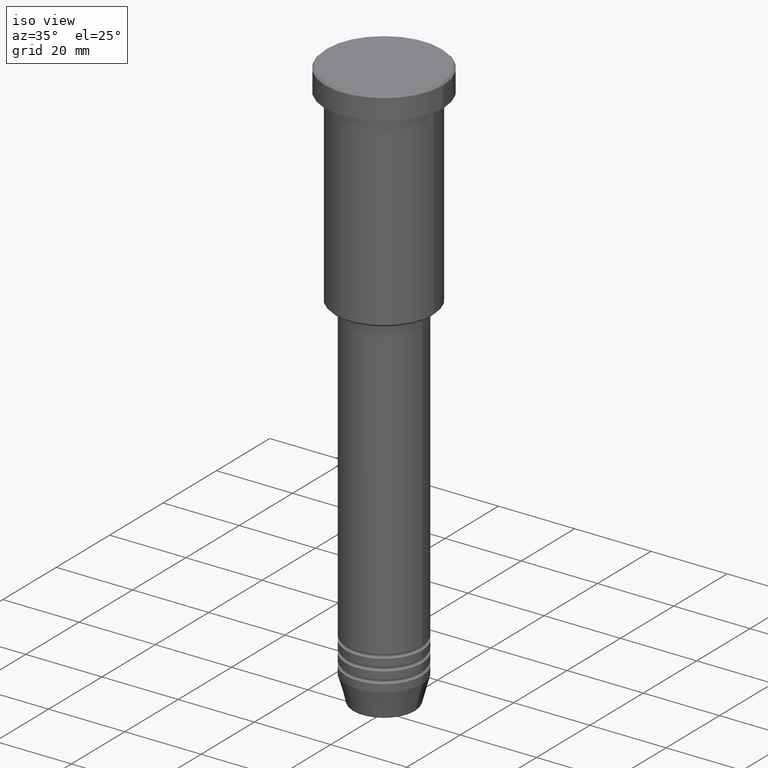
[diagram: clean part render]
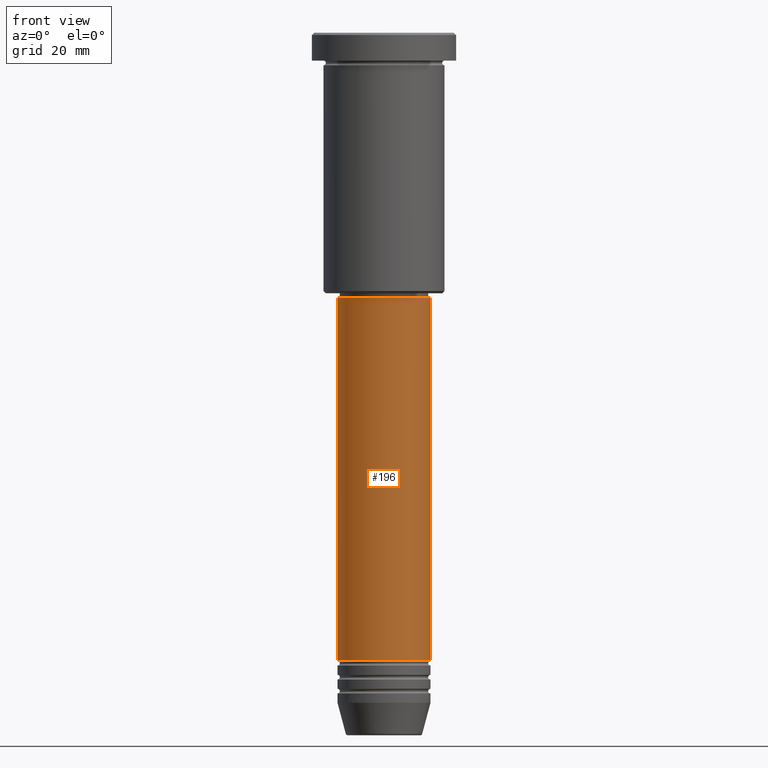
[diagram: tour spotlight — one face highlighted and labeled with its STEP entity id]
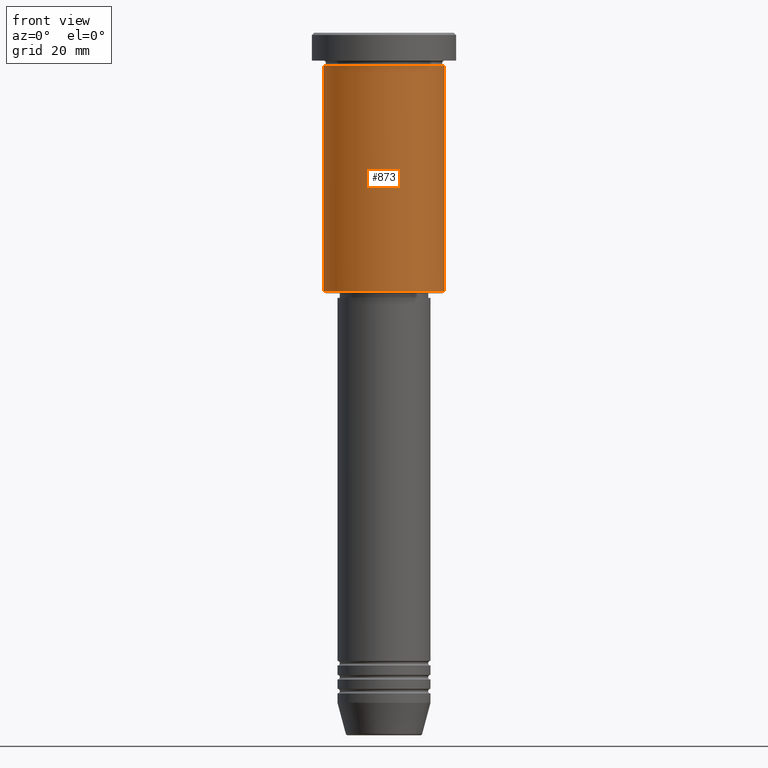
[diagram: tour spotlight — one face highlighted and labeled with its STEP entity id]
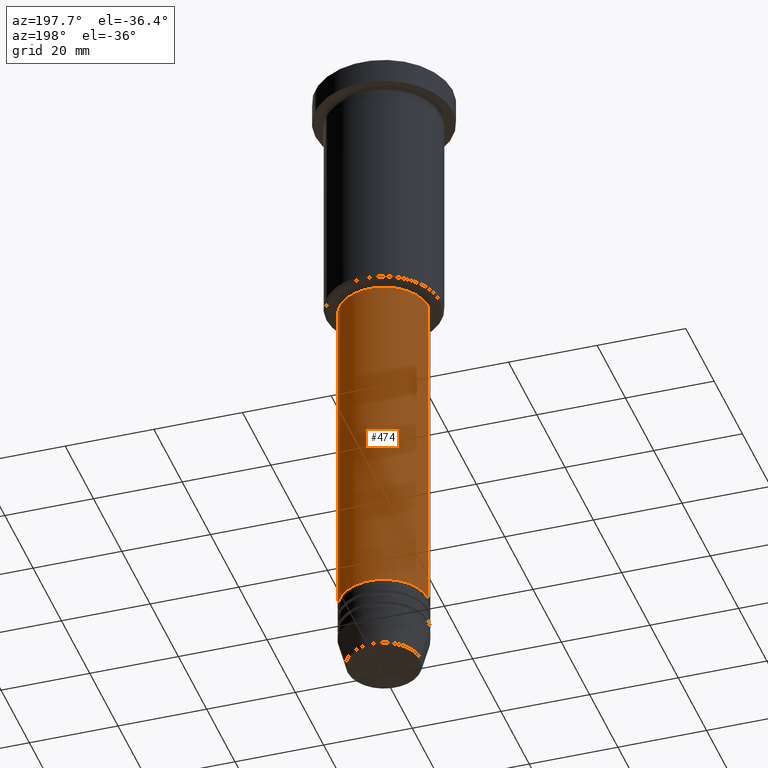
[diagram: tour spotlight — one face highlighted and labeled with its STEP entity id]
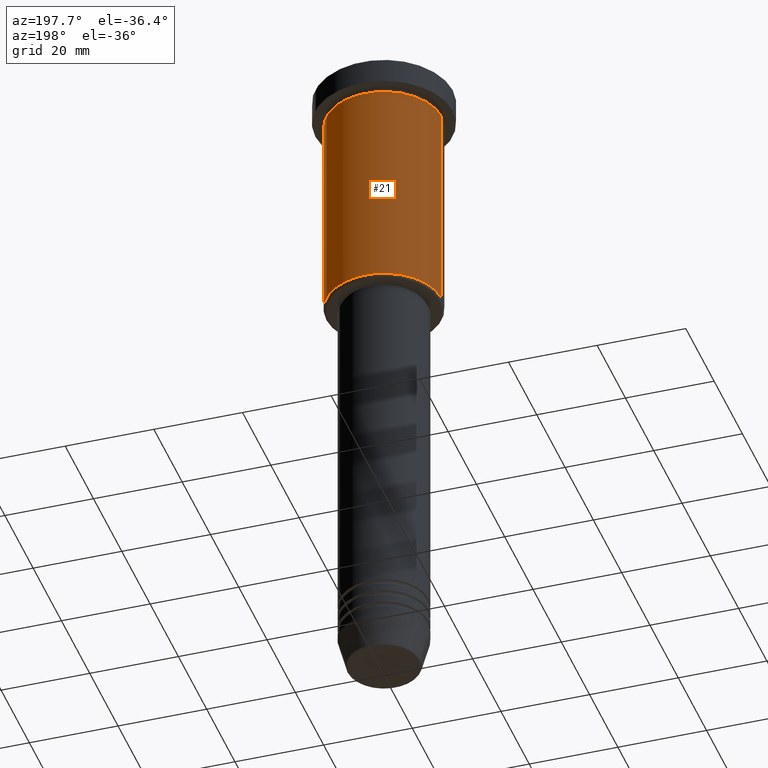
[diagram: tour spotlight — one face highlighted and labeled with its STEP entity id]
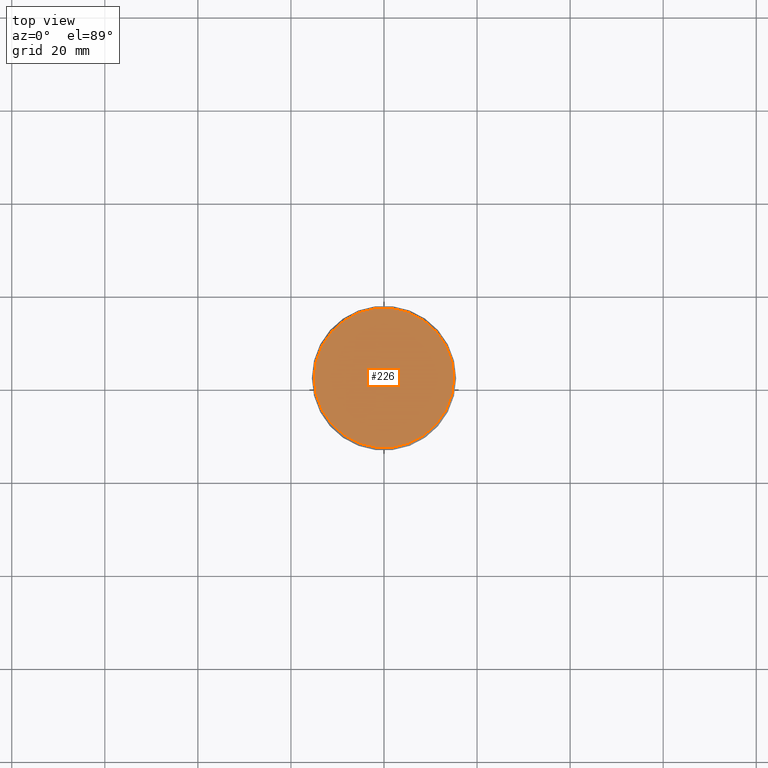
[diagram: tour spotlight — one face highlighted and labeled with its STEP entity id]
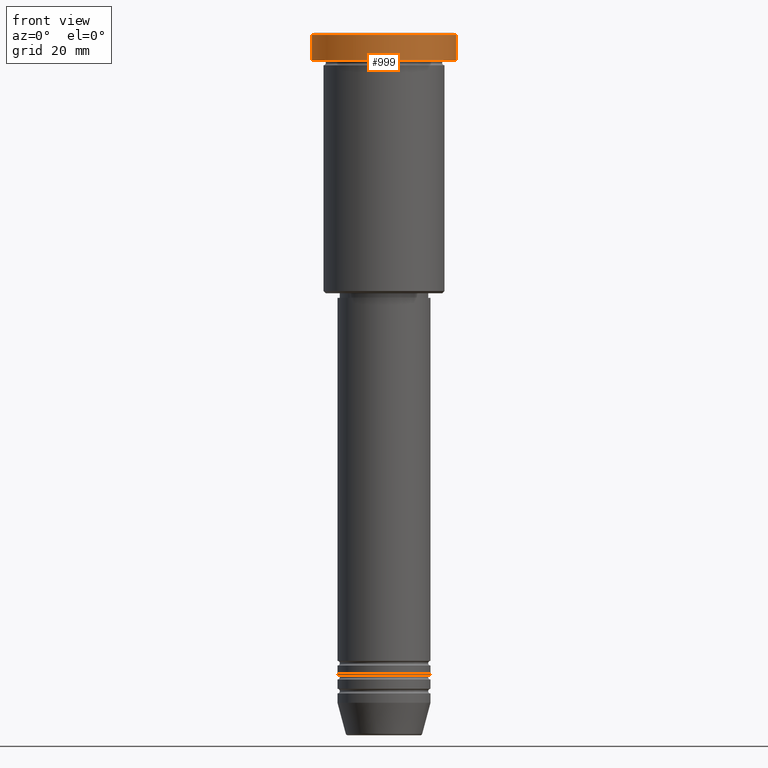
[diagram: tour spotlight — one face highlighted and labeled with its STEP entity id]
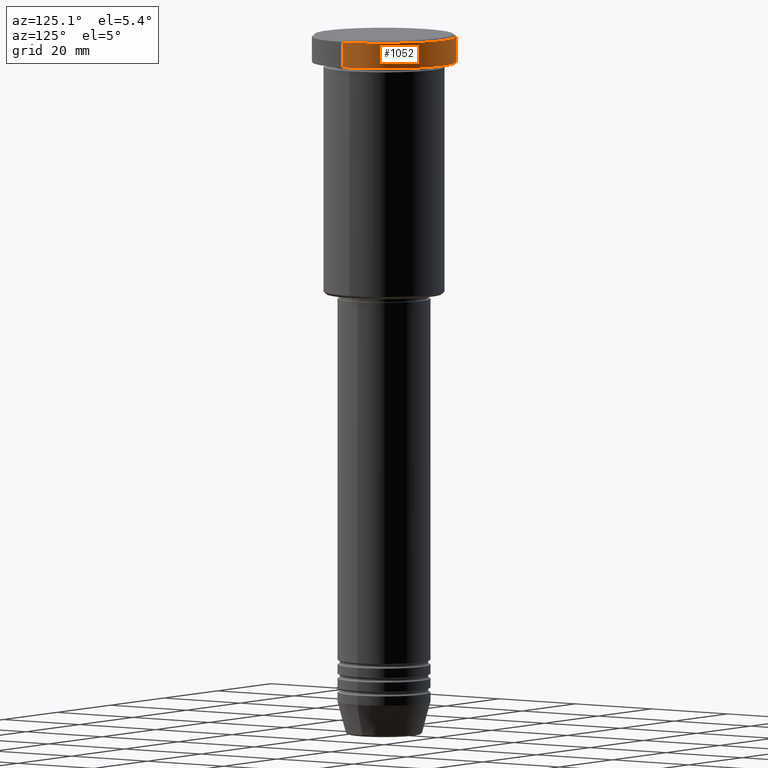
[diagram: tour spotlight — one face highlighted and labeled with its STEP entity id]
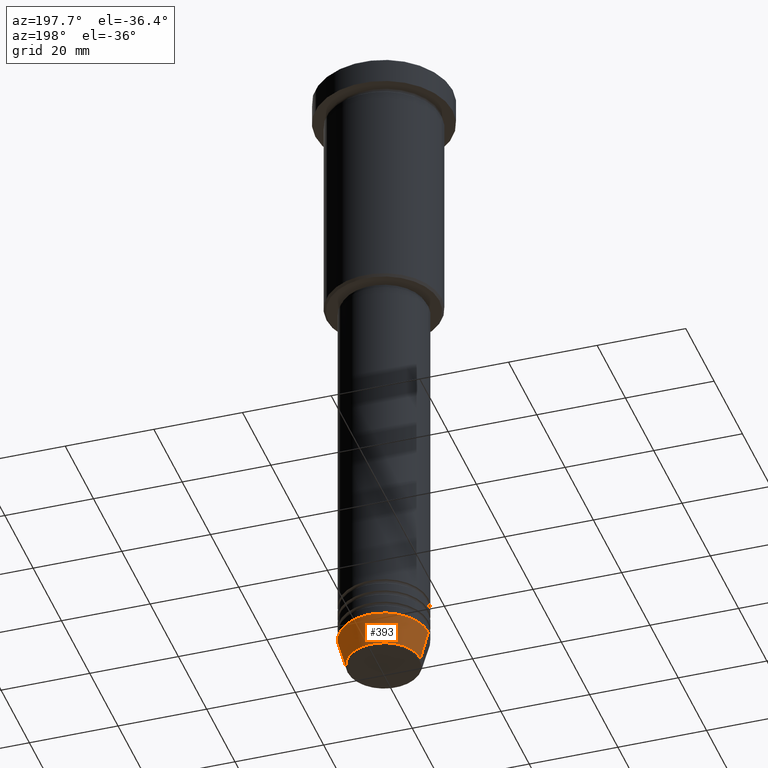
[diagram: tour spotlight — one face highlighted and labeled with its STEP entity id]
A machine part: a face-by-face anatomy tour. The part has 43 B-rep faces; the first image is the clean iso view, then the 8 largest visible faces are spotlighted one at a time (largest first), each with its STEP entity span.

Face 1 — front view, entity #196. In plain terms, the highlighted cylindrical surface (partial cylindrical patch) has radius 10 mm, axis along (-0, -0, 1).
Definition (entity closure, byte-faithful):
#109 = VERTEX_POINT ( 'NONE', #274 ) ;
#111 = DIRECTION ( 'NONE',  ( 1.000000000000000000, 0.000000000000000000, 0.000000000000000000 ) ) ;
#166 = EDGE_LOOP ( 'NONE', ( #892, #970, #905, #227 ) ) ;
#196 = ADVANCED_FACE ( 'NONE', ( #1043 ), #205, .T. ) ;
#205 = CYLINDRICAL_SURFACE ( 'NONE', #1084, 10.00000000000000000 ) ;
#224 = CARTESIAN_POINT ( 'NONE',  ( 0.000000000000000000, 0.000000000000000000, 0.000000000000000000 ) ) ;
#227 = ORIENTED_EDGE ( 'NONE', *, *, #302, .F. ) ;
#244 = LINE ( 'NONE', #447, #846 ) ;
#274 = CARTESIAN_POINT ( 'NONE',  ( -10.00000000000000000, 1.224646799147353256E-15, -57.00000000000001421 ) ) ;
#302 = EDGE_CURVE ( 'NONE', #109, #778, #804, .T. ) ;
#306 = DIRECTION ( 'NONE',  ( 1.000000000000000000, 0.000000000000000000, 0.000000000000000000 ) ) ;
#315 = CARTESIAN_POINT ( 'NONE',  ( 0.000000000000000000, 0.000000000000000000, -134.9999999999999716 ) ) ;
#365 = LINE ( 'NONE', #987, #499 ) ;
#447 = CARTESIAN_POINT ( 'NONE',  ( -10.00000000000000000, 1.224646799147353256E-15, 0.000000000000000000 ) ) ;
#448 = VERTEX_POINT ( 'NONE', #1056 ) ;
#499 = VECTOR ( 'NONE', #1088, 1000.000000000000000 ) ;
#511 = DIRECTION ( 'NONE',  ( 1.000000000000000000, 0.000000000000000000, 0.000000000000000000 ) ) ;
#547 = CARTESIAN_POINT ( 'NONE',  ( -10.00000000000000000, 1.224646799147353256E-15, -134.9999999999999716 ) ) ;
#574 = CARTESIAN_POINT ( 'NONE',  ( 10.00000000000000000, 0.000000000000000000, -57.00000000000001421 ) ) ;
#589 = DIRECTION ( 'NONE',  ( -0.000000000000000000, -0.000000000000000000, 1.000000000000000000 ) ) ;
#669 = DIRECTION ( 'NONE',  ( -0.000000000000000000, -0.000000000000000000, 1.000000000000000000 ) ) ;
#769 = CARTESIAN_POINT ( 'NONE',  ( 0.000000000000000000, 0.000000000000000000, -57.00000000000001421 ) ) ;
#778 = VERTEX_POINT ( 'NONE', #574 ) ;
#786 = EDGE_CURVE ( 'NONE', #1022, #448, #1026, .T. ) ;
#804 = CIRCLE ( 'NONE', #937, 10.00000000000000000 ) ;
#811 = DIRECTION ( 'NONE',  ( -0.000000000000000000, -0.000000000000000000, 1.000000000000000000 ) ) ;
#846 = VECTOR ( 'NONE', #811, 1000.000000000000000 ) ;
#892 = ORIENTED_EDGE ( 'NONE', *, *, #1078, .F. ) ;
#905 = ORIENTED_EDGE ( 'NONE', *, *, #1089, .T. ) ;
#937 = AXIS2_PLACEMENT_3D ( 'NONE', #769, #1028, #111 ) ;
#970 = ORIENTED_EDGE ( 'NONE', *, *, #786, .T. ) ;
#987 = CARTESIAN_POINT ( 'NONE',  ( 10.00000000000000000, 0.000000000000000000, 0.000000000000000000 ) ) ;
#1022 = VERTEX_POINT ( 'NONE', #547 ) ;
#1026 = CIRCLE ( 'NONE', #1061, 10.00000000000000000 ) ;
#1028 = DIRECTION ( 'NONE',  ( -0.000000000000000000, -0.000000000000000000, 1.000000000000000000 ) ) ;
#1043 = FACE_OUTER_BOUND ( 'NONE', #166, .T. ) ;
#1056 = CARTESIAN_POINT ( 'NONE',  ( 10.00000000000000000, 0.000000000000000000, -134.9999999999999716 ) ) ;
#1061 = AXIS2_PLACEMENT_3D ( 'NONE', #315, #669, #306 ) ;
#1078 = EDGE_CURVE ( 'NONE', #1022, #109, #244, .T. ) ;
#1084 = AXIS2_PLACEMENT_3D ( 'NONE', #224, #589, #511 ) ;
#1088 = DIRECTION ( 'NONE',  ( -0.000000000000000000, -0.000000000000000000, 1.000000000000000000 ) ) ;
#1089 = EDGE_CURVE ( 'NONE', #448, #778, #365, .T. ) ;

Face 2 — front view, entity #873. In plain terms, the highlighted cylindrical surface (partial cylindrical patch) has radius 13 mm, axis along (-0, -0, 1).
Definition (entity closure, byte-faithful):
#75 = LINE ( 'NONE', #625, #238 ) ;
#89 = CARTESIAN_POINT ( 'NONE',  ( 13.00000000000000000, 0.000000000000000000, -55.50000000000002132 ) ) ;
#91 = DIRECTION ( 'NONE',  ( -1.000000000000000000, 0.000000000000000000, 0.000000000000000000 ) ) ;
#106 = ORIENTED_EDGE ( 'NONE', *, *, #135, .T. ) ;
#123 = AXIS2_PLACEMENT_3D ( 'NONE', #261, #149, #328 ) ;
#135 = EDGE_CURVE ( 'NONE', #1027, #653, #718, .T. ) ;
#138 = CYLINDRICAL_SURFACE ( 'NONE', #807, 13.00000000000000000 ) ;
#149 = DIRECTION ( 'NONE',  ( -0.000000000000000000, -0.000000000000000000, 1.000000000000000000 ) ) ;
#151 = EDGE_CURVE ( 'NONE', #1027, #632, #559, .T. ) ;
#156 = CARTESIAN_POINT ( 'NONE',  ( 0.000000000000000000, 0.000000000000000000, 0.000000000000000000 ) ) ;
#171 = VERTEX_POINT ( 'NONE', #917 ) ;
#184 = AXIS2_PLACEMENT_3D ( 'NONE', #832, #727, #91 ) ;
#238 = VECTOR ( 'NONE', #911, 1000.000000000000000 ) ;
#261 = CARTESIAN_POINT ( 'NONE',  ( 0.000000000000000000, 0.000000000000000000, -6.999999999999995559 ) ) ;
#328 = DIRECTION ( 'NONE',  ( 1.000000000000000000, 0.000000000000000000, 0.000000000000000000 ) ) ;
#430 = EDGE_LOOP ( 'NONE', ( #1113, #106, #711, #528 ) ) ;
#502 = CIRCLE ( 'NONE', #123, 13.00000000000000000 ) ;
#528 = ORIENTED_EDGE ( 'NONE', *, *, #857, .F. ) ;
#534 = FACE_OUTER_BOUND ( 'NONE', #430, .T. ) ;
#559 = LINE ( 'NONE', #1001, #760 ) ;
#625 = CARTESIAN_POINT ( 'NONE',  ( 13.00000000000000000, 0.000000000000000000, 0.000000000000000000 ) ) ;
#632 = VERTEX_POINT ( 'NONE', #1013 ) ;
#653 = VERTEX_POINT ( 'NONE', #89 ) ;
#711 = ORIENTED_EDGE ( 'NONE', *, *, #977, .T. ) ;
#718 = CIRCLE ( 'NONE', #184, 13.00000000000000000 ) ;
#727 = DIRECTION ( 'NONE',  ( -0.000000000000000000, -0.000000000000000000, 1.000000000000000000 ) ) ;
#760 = VECTOR ( 'NONE', #933, 1000.000000000000000 ) ;
#807 = AXIS2_PLACEMENT_3D ( 'NONE', #156, #874, #882 ) ;
#832 = CARTESIAN_POINT ( 'NONE',  ( 0.000000000000000000, 0.000000000000000000, -55.50000000000002132 ) ) ;
#857 = EDGE_CURVE ( 'NONE', #632, #171, #502, .T. ) ;
#873 = ADVANCED_FACE ( 'NONE', ( #534 ), #138, .T. ) ;
#874 = DIRECTION ( 'NONE',  ( -0.000000000000000000, -0.000000000000000000, 1.000000000000000000 ) ) ;
#882 = DIRECTION ( 'NONE',  ( 1.000000000000000000, 0.000000000000000000, 0.000000000000000000 ) ) ;
#911 = DIRECTION ( 'NONE',  ( -0.000000000000000000, -0.000000000000000000, 1.000000000000000000 ) ) ;
#917 = CARTESIAN_POINT ( 'NONE',  ( 13.00000000000000000, 0.000000000000000000, -6.999999999999995559 ) ) ;
#933 = DIRECTION ( 'NONE',  ( -0.000000000000000000, -0.000000000000000000, 1.000000000000000000 ) ) ;
#977 = EDGE_CURVE ( 'NONE', #653, #171, #75, .T. ) ;
#1001 = CARTESIAN_POINT ( 'NONE',  ( -13.00000000000000000, 1.592040838891559095E-15, 0.000000000000000000 ) ) ;
#1013 = CARTESIAN_POINT ( 'NONE',  ( -13.00000000000000000, 1.592040838891559095E-15, -6.999999999999995559 ) ) ;
#1027 = VERTEX_POINT ( 'NONE', #1158 ) ;
#1113 = ORIENTED_EDGE ( 'NONE', *, *, #151, .F. ) ;
#1158 = CARTESIAN_POINT ( 'NONE',  ( -13.00000000000000000, 1.592040838891559095E-15, -55.50000000000002132 ) ) ;

Face 3 — auxiliary view, entity #474. In plain terms, the highlighted cylindrical surface (partial cylindrical patch) has radius 10 mm, axis along (-0, -0, 1).
Definition (entity closure, byte-faithful):
#9 = EDGE_CURVE ( 'NONE', #778, #109, #301, .T. ) ;
#54 = CARTESIAN_POINT ( 'NONE',  ( 0.000000000000000000, 0.000000000000000000, 0.000000000000000000 ) ) ;
#60 = ORIENTED_EDGE ( 'NONE', *, *, #9, .F. ) ;
#62 = CYLINDRICAL_SURFACE ( 'NONE', #586, 10.00000000000000000 ) ;
#79 = EDGE_LOOP ( 'NONE', ( #397, #808, #60, #1095 ) ) ;
#109 = VERTEX_POINT ( 'NONE', #274 ) ;
#189 = EDGE_CURVE ( 'NONE', #448, #1022, #362, .T. ) ;
#204 = DIRECTION ( 'NONE',  ( -0.000000000000000000, -0.000000000000000000, 1.000000000000000000 ) ) ;
#229 = DIRECTION ( 'NONE',  ( 1.000000000000000000, 0.000000000000000000, 0.000000000000000000 ) ) ;
#244 = LINE ( 'NONE', #447, #846 ) ;
#274 = CARTESIAN_POINT ( 'NONE',  ( -10.00000000000000000, 1.224646799147353256E-15, -57.00000000000001421 ) ) ;
#301 = CIRCLE ( 'NONE', #828, 10.00000000000000000 ) ;
#342 = DIRECTION ( 'NONE',  ( -0.000000000000000000, -0.000000000000000000, 1.000000000000000000 ) ) ;
#362 = CIRCLE ( 'NONE', #1010, 10.00000000000000000 ) ;
#365 = LINE ( 'NONE', #987, #499 ) ;
#389 = DIRECTION ( 'NONE',  ( 1.000000000000000000, 0.000000000000000000, 0.000000000000000000 ) ) ;
#397 = ORIENTED_EDGE ( 'NONE', *, *, #189, .T. ) ;
#447 = CARTESIAN_POINT ( 'NONE',  ( -10.00000000000000000, 1.224646799147353256E-15, 0.000000000000000000 ) ) ;
#448 = VERTEX_POINT ( 'NONE', #1056 ) ;
#474 = ADVANCED_FACE ( 'NONE', ( #610 ), #62, .T. ) ;
#499 = VECTOR ( 'NONE', #1088, 1000.000000000000000 ) ;
#547 = CARTESIAN_POINT ( 'NONE',  ( -10.00000000000000000, 1.224646799147353256E-15, -134.9999999999999716 ) ) ;
#574 = CARTESIAN_POINT ( 'NONE',  ( 10.00000000000000000, 0.000000000000000000, -57.00000000000001421 ) ) ;
#586 = AXIS2_PLACEMENT_3D ( 'NONE', #54, #342, #714 ) ;
#610 = FACE_OUTER_BOUND ( 'NONE', #79, .T. ) ;
#652 = CARTESIAN_POINT ( 'NONE',  ( 0.000000000000000000, 0.000000000000000000, -134.9999999999999716 ) ) ;
#672 = DIRECTION ( 'NONE',  ( -0.000000000000000000, -0.000000000000000000, 1.000000000000000000 ) ) ;
#714 = DIRECTION ( 'NONE',  ( 1.000000000000000000, 0.000000000000000000, 0.000000000000000000 ) ) ;
#778 = VERTEX_POINT ( 'NONE', #574 ) ;
#808 = ORIENTED_EDGE ( 'NONE', *, *, #1078, .T. ) ;
#811 = DIRECTION ( 'NONE',  ( -0.000000000000000000, -0.000000000000000000, 1.000000000000000000 ) ) ;
#828 = AXIS2_PLACEMENT_3D ( 'NONE', #853, #204, #389 ) ;
#846 = VECTOR ( 'NONE', #811, 1000.000000000000000 ) ;
#853 = CARTESIAN_POINT ( 'NONE',  ( 0.000000000000000000, 0.000000000000000000, -57.00000000000001421 ) ) ;
#987 = CARTESIAN_POINT ( 'NONE',  ( 10.00000000000000000, 0.000000000000000000, 0.000000000000000000 ) ) ;
#1010 = AXIS2_PLACEMENT_3D ( 'NONE', #652, #672, #229 ) ;
#1022 = VERTEX_POINT ( 'NONE', #547 ) ;
#1056 = CARTESIAN_POINT ( 'NONE',  ( 10.00000000000000000, 0.000000000000000000, -134.9999999999999716 ) ) ;
#1078 = EDGE_CURVE ( 'NONE', #1022, #109, #244, .T. ) ;
#1088 = DIRECTION ( 'NONE',  ( -0.000000000000000000, -0.000000000000000000, 1.000000000000000000 ) ) ;
#1089 = EDGE_CURVE ( 'NONE', #448, #778, #365, .T. ) ;
#1095 = ORIENTED_EDGE ( 'NONE', *, *, #1089, .F. ) ;

Face 4 — auxiliary view, entity #21. In plain terms, the highlighted cylindrical surface (partial cylindrical patch) has radius 13 mm, axis along (-0, -0, 1).
Definition (entity closure, byte-faithful):
#1 = DIRECTION ( 'NONE',  ( -0.000000000000000000, -0.000000000000000000, 1.000000000000000000 ) ) ;
#2 = FACE_OUTER_BOUND ( 'NONE', #826, .T. ) ;
#21 = ADVANCED_FACE ( 'NONE', ( #2 ), #557, .T. ) ;
#75 = LINE ( 'NONE', #625, #238 ) ;
#89 = CARTESIAN_POINT ( 'NONE',  ( 13.00000000000000000, 0.000000000000000000, -55.50000000000002132 ) ) ;
#151 = EDGE_CURVE ( 'NONE', #1027, #632, #559, .T. ) ;
#160 = EDGE_CURVE ( 'NONE', #653, #1027, #413, .T. ) ;
#171 = VERTEX_POINT ( 'NONE', #917 ) ;
#179 = DIRECTION ( 'NONE',  ( -1.000000000000000000, 0.000000000000000000, 0.000000000000000000 ) ) ;
#238 = VECTOR ( 'NONE', #911, 1000.000000000000000 ) ;
#321 = AXIS2_PLACEMENT_3D ( 'NONE', #836, #1181, #981 ) ;
#371 = EDGE_CURVE ( 'NONE', #171, #632, #572, .T. ) ;
#413 = CIRCLE ( 'NONE', #776, 13.00000000000000000 ) ;
#424 = CARTESIAN_POINT ( 'NONE',  ( 0.000000000000000000, 0.000000000000000000, -6.999999999999995559 ) ) ;
#487 = AXIS2_PLACEMENT_3D ( 'NONE', #424, #973, #701 ) ;
#543 = ORIENTED_EDGE ( 'NONE', *, *, #160, .T. ) ;
#557 = CYLINDRICAL_SURFACE ( 'NONE', #321, 13.00000000000000000 ) ;
#559 = LINE ( 'NONE', #1001, #760 ) ;
#572 = CIRCLE ( 'NONE', #487, 13.00000000000000000 ) ;
#625 = CARTESIAN_POINT ( 'NONE',  ( 13.00000000000000000, 0.000000000000000000, 0.000000000000000000 ) ) ;
#632 = VERTEX_POINT ( 'NONE', #1013 ) ;
#644 = CARTESIAN_POINT ( 'NONE',  ( 0.000000000000000000, 0.000000000000000000, -55.50000000000002132 ) ) ;
#653 = VERTEX_POINT ( 'NONE', #89 ) ;
#701 = DIRECTION ( 'NONE',  ( 1.000000000000000000, 0.000000000000000000, 0.000000000000000000 ) ) ;
#760 = VECTOR ( 'NONE', #933, 1000.000000000000000 ) ;
#776 = AXIS2_PLACEMENT_3D ( 'NONE', #644, #1, #179 ) ;
#826 = EDGE_LOOP ( 'NONE', ( #543, #1105, #975, #929 ) ) ;
#836 = CARTESIAN_POINT ( 'NONE',  ( 0.000000000000000000, 0.000000000000000000, 0.000000000000000000 ) ) ;
#911 = DIRECTION ( 'NONE',  ( -0.000000000000000000, -0.000000000000000000, 1.000000000000000000 ) ) ;
#917 = CARTESIAN_POINT ( 'NONE',  ( 13.00000000000000000, 0.000000000000000000, -6.999999999999995559 ) ) ;
#929 = ORIENTED_EDGE ( 'NONE', *, *, #977, .F. ) ;
#933 = DIRECTION ( 'NONE',  ( -0.000000000000000000, -0.000000000000000000, 1.000000000000000000 ) ) ;
#973 = DIRECTION ( 'NONE',  ( -0.000000000000000000, -0.000000000000000000, 1.000000000000000000 ) ) ;
#975 = ORIENTED_EDGE ( 'NONE', *, *, #371, .F. ) ;
#977 = EDGE_CURVE ( 'NONE', #653, #171, #75, .T. ) ;
#981 = DIRECTION ( 'NONE',  ( 1.000000000000000000, 0.000000000000000000, 0.000000000000000000 ) ) ;
#1001 = CARTESIAN_POINT ( 'NONE',  ( -13.00000000000000000, 1.592040838891559095E-15, 0.000000000000000000 ) ) ;
#1013 = CARTESIAN_POINT ( 'NONE',  ( -13.00000000000000000, 1.592040838891559095E-15, -6.999999999999995559 ) ) ;
#1027 = VERTEX_POINT ( 'NONE', #1158 ) ;
#1105 = ORIENTED_EDGE ( 'NONE', *, *, #151, .T. ) ;
#1158 = CARTESIAN_POINT ( 'NONE',  ( -13.00000000000000000, 1.592040838891559095E-15, -55.50000000000002132 ) ) ;
#1181 = DIRECTION ( 'NONE',  ( -0.000000000000000000, -0.000000000000000000, 1.000000000000000000 ) ) ;

Face 5 — top view, entity #226. In plain terms, the highlighted planar face has unit normal (0, -0, 1).
Definition (entity closure, byte-faithful):
#48 = DIRECTION ( 'NONE',  ( -0.000000000000000000, -0.000000000000000000, 1.000000000000000000 ) ) ;
#129 = DIRECTION ( 'NONE',  ( 0.000000000000000000, -0.000000000000000000, 1.000000000000000000 ) ) ;
#197 = ORIENTED_EDGE ( 'NONE', *, *, #1094, .T. ) ;
#226 = ADVANCED_FACE ( 'NONE', ( #1031 ), #680, .T. ) ;
#282 = AXIS2_PLACEMENT_3D ( 'NONE', #1048, #129, #508 ) ;
#360 = DIRECTION ( 'NONE',  ( 1.000000000000000000, 0.000000000000000000, 0.000000000000000000 ) ) ;
#415 = ORIENTED_EDGE ( 'NONE', *, *, #885, .T. ) ;
#423 = DIRECTION ( 'NONE',  ( 1.000000000000000000, 0.000000000000000000, 0.000000000000000000 ) ) ;
#477 = CARTESIAN_POINT ( 'NONE',  ( -14.99999999999997158, 0.000000000000000000, 0.000000000000000000 ) ) ;
#508 = DIRECTION ( 'NONE',  ( 1.000000000000000000, 0.000000000000000000, 0.000000000000000000 ) ) ;
#540 = CIRCLE ( 'NONE', #827, 14.99999999999997158 ) ;
#680 = PLANE ( 'NONE',  #282 ) ;
#819 = DIRECTION ( 'NONE',  ( -0.000000000000000000, -0.000000000000000000, 1.000000000000000000 ) ) ;
#827 = AXIS2_PLACEMENT_3D ( 'NONE', #904, #48, #423 ) ;
#877 = AXIS2_PLACEMENT_3D ( 'NONE', #908, #819, #360 ) ;
#885 = EDGE_CURVE ( 'NONE', #959, #1148, #540, .T. ) ;
#904 = CARTESIAN_POINT ( 'NONE',  ( 0.000000000000000000, 0.000000000000000000, 0.000000000000000000 ) ) ;
#908 = CARTESIAN_POINT ( 'NONE',  ( 0.000000000000000000, 0.000000000000000000, 0.000000000000000000 ) ) ;
#959 = VERTEX_POINT ( 'NONE', #1149 ) ;
#1031 = FACE_OUTER_BOUND ( 'NONE', #1130, .T. ) ;
#1048 = CARTESIAN_POINT ( 'NONE',  ( 0.000000000000000000, 0.000000000000000000, 0.000000000000000000 ) ) ;
#1057 = CIRCLE ( 'NONE', #877, 14.99999999999997158 ) ;
#1094 = EDGE_CURVE ( 'NONE', #1148, #959, #1057, .T. ) ;
#1130 = EDGE_LOOP ( 'NONE', ( #197, #415 ) ) ;
#1148 = VERTEX_POINT ( 'NONE', #477 ) ;
#1149 = CARTESIAN_POINT ( 'NONE',  ( 14.99999999999997158, 1.867586368699711798E-15, 0.000000000000000000 ) ) ;

Face 6 — front view, entity #999. In plain terms, the highlighted cylindrical surface (partial cylindrical patch) has radius 15.5 mm, axis along (-0, -0, 1).
Definition (entity closure, byte-faithful):
#8 = CARTESIAN_POINT ( 'NONE',  ( 15.50000000000000000, 0.000000000000000000, 0.000000000000000000 ) ) ;
#34 = EDGE_CURVE ( 'NONE', #963, #1062, #988, .T. ) ;
#45 = CARTESIAN_POINT ( 'NONE',  ( -15.50000000000000000, 1.898202538678397557E-15, -5.999999999999995559 ) ) ;
#52 = DIRECTION ( 'NONE',  ( 1.000000000000000000, 0.000000000000000000, 0.000000000000000000 ) ) ;
#98 = DIRECTION ( 'NONE',  ( -0.000000000000000000, -0.000000000000000000, 1.000000000000000000 ) ) ;
#158 = DIRECTION ( 'NONE',  ( -0.000000000000000000, -0.000000000000000000, 1.000000000000000000 ) ) ;
#168 = AXIS2_PLACEMENT_3D ( 'NONE', #969, #703, #175 ) ;
#175 = DIRECTION ( 'NONE',  ( 1.000000000000000000, 0.000000000000000000, 0.000000000000000000 ) ) ;
#260 = VERTEX_POINT ( 'NONE', #45 ) ;
#288 = LINE ( 'NONE', #1020, #1011 ) ;
#355 = ORIENTED_EDGE ( 'NONE', *, *, #34, .T. ) ;
#439 = CARTESIAN_POINT ( 'NONE',  ( 15.50000000000000000, 0.000000000000000000, -5.999999999999995559 ) ) ;
#488 = ORIENTED_EDGE ( 'NONE', *, *, #494, .T. ) ;
#494 = EDGE_CURVE ( 'NONE', #260, #963, #864, .T. ) ;
#506 = EDGE_CURVE ( 'NONE', #260, #581, #288, .T. ) ;
#531 = DIRECTION ( 'NONE',  ( -0.000000000000000000, -0.000000000000000000, 1.000000000000000000 ) ) ;
#544 = FACE_OUTER_BOUND ( 'NONE', #1034, .T. ) ;
#581 = VERTEX_POINT ( 'NONE', #1109 ) ;
#598 = CARTESIAN_POINT ( 'NONE',  ( 0.000000000000000000, 0.000000000000000000, 0.000000000000000000 ) ) ;
#621 = CARTESIAN_POINT ( 'NONE',  ( 0.000000000000000000, 0.000000000000000000, -5.999999999999995559 ) ) ;
#624 = AXIS2_PLACEMENT_3D ( 'NONE', #598, #531, #52 ) ;
#667 = ORIENTED_EDGE ( 'NONE', *, *, #1029, .T. ) ;
#703 = DIRECTION ( 'NONE',  ( 0.000000000000000000, 0.000000000000000000, -1.000000000000000000 ) ) ;
#710 = CYLINDRICAL_SURFACE ( 'NONE', #624, 15.50000000000000000 ) ;
#723 = DIRECTION ( 'NONE',  ( -0.000000000000000000, -0.000000000000000000, 1.000000000000000000 ) ) ;
#833 = DIRECTION ( 'NONE',  ( 1.000000000000000000, 0.000000000000000000, 0.000000000000000000 ) ) ;
#864 = CIRCLE ( 'NONE', #903, 15.50000000000000000 ) ;
#903 = AXIS2_PLACEMENT_3D ( 'NONE', #621, #723, #833 ) ;
#919 = CIRCLE ( 'NONE', #168, 15.50000000000000000 ) ;
#963 = VERTEX_POINT ( 'NONE', #439 ) ;
#969 = CARTESIAN_POINT ( 'NONE',  ( 0.000000000000000000, 0.000000000000000000, -0.5000000000000264233 ) ) ;
#988 = LINE ( 'NONE', #8, #992 ) ;
#992 = VECTOR ( 'NONE', #158, 1000.000000000000000 ) ;
#999 = ADVANCED_FACE ( 'NONE', ( #544 ), #710, .T. ) ;
#1011 = VECTOR ( 'NONE', #98, 1000.000000000000000 ) ;
#1020 = CARTESIAN_POINT ( 'NONE',  ( -15.50000000000000000, 1.898202538678397557E-15, 0.000000000000000000 ) ) ;
#1029 = EDGE_CURVE ( 'NONE', #1062, #581, #919, .T. ) ;
#1034 = EDGE_LOOP ( 'NONE', ( #1049, #488, #355, #667 ) ) ;
#1049 = ORIENTED_EDGE ( 'NONE', *, *, #506, .F. ) ;
#1062 = VERTEX_POINT ( 'NONE', #1083 ) ;
#1083 = CARTESIAN_POINT ( 'NONE',  ( 15.50000000000000000, 0.000000000000000000, -0.5000000000000264233 ) ) ;
#1109 = CARTESIAN_POINT ( 'NONE',  ( -15.50000000000000000, 1.898202538678397557E-15, -0.5000000000000264233 ) ) ;

Face 7 — auxiliary view, entity #1052. In plain terms, the highlighted cylindrical surface (partial cylindrical patch) has radius 15.5 mm, axis along (-0, -0, 1).
Definition (entity closure, byte-faithful):
#8 = CARTESIAN_POINT ( 'NONE',  ( 15.50000000000000000, 0.000000000000000000, 0.000000000000000000 ) ) ;
#13 = DIRECTION ( 'NONE',  ( 1.000000000000000000, 0.000000000000000000, 0.000000000000000000 ) ) ;
#32 = ORIENTED_EDGE ( 'NONE', *, *, #548, .T. ) ;
#34 = EDGE_CURVE ( 'NONE', #963, #1062, #988, .T. ) ;
#45 = CARTESIAN_POINT ( 'NONE',  ( -15.50000000000000000, 1.898202538678397557E-15, -5.999999999999995559 ) ) ;
#98 = DIRECTION ( 'NONE',  ( -0.000000000000000000, -0.000000000000000000, 1.000000000000000000 ) ) ;
#110 = EDGE_CURVE ( 'NONE', #963, #260, #1157, .T. ) ;
#158 = DIRECTION ( 'NONE',  ( -0.000000000000000000, -0.000000000000000000, 1.000000000000000000 ) ) ;
#260 = VERTEX_POINT ( 'NONE', #45 ) ;
#288 = LINE ( 'NONE', #1020, #1011 ) ;
#303 = CIRCLE ( 'NONE', #1122, 15.50000000000000000 ) ;
#340 = AXIS2_PLACEMENT_3D ( 'NONE', #755, #555, #924 ) ;
#345 = DIRECTION ( 'NONE',  ( -0.000000000000000000, -0.000000000000000000, 1.000000000000000000 ) ) ;
#346 = ORIENTED_EDGE ( 'NONE', *, *, #110, .T. ) ;
#373 = DIRECTION ( 'NONE',  ( 0.000000000000000000, 0.000000000000000000, -1.000000000000000000 ) ) ;
#439 = CARTESIAN_POINT ( 'NONE',  ( 15.50000000000000000, 0.000000000000000000, -5.999999999999995559 ) ) ;
#506 = EDGE_CURVE ( 'NONE', #260, #581, #288, .T. ) ;
#548 = EDGE_CURVE ( 'NONE', #581, #1062, #303, .T. ) ;
#555 = DIRECTION ( 'NONE',  ( -0.000000000000000000, -0.000000000000000000, 1.000000000000000000 ) ) ;
#581 = VERTEX_POINT ( 'NONE', #1109 ) ;
#613 = CARTESIAN_POINT ( 'NONE',  ( 0.000000000000000000, 0.000000000000000000, 0.000000000000000000 ) ) ;
#637 = CARTESIAN_POINT ( 'NONE',  ( 0.000000000000000000, 0.000000000000000000, -0.5000000000000264233 ) ) ;
#674 = AXIS2_PLACEMENT_3D ( 'NONE', #613, #345, #980 ) ;
#679 = EDGE_LOOP ( 'NONE', ( #346, #1164, #32, #820 ) ) ;
#755 = CARTESIAN_POINT ( 'NONE',  ( 0.000000000000000000, 0.000000000000000000, -5.999999999999995559 ) ) ;
#820 = ORIENTED_EDGE ( 'NONE', *, *, #34, .F. ) ;
#914 = CYLINDRICAL_SURFACE ( 'NONE', #674, 15.50000000000000000 ) ;
#924 = DIRECTION ( 'NONE',  ( 1.000000000000000000, 0.000000000000000000, 0.000000000000000000 ) ) ;
#963 = VERTEX_POINT ( 'NONE', #439 ) ;
#980 = DIRECTION ( 'NONE',  ( 1.000000000000000000, 0.000000000000000000, 0.000000000000000000 ) ) ;
#988 = LINE ( 'NONE', #8, #992 ) ;
#992 = VECTOR ( 'NONE', #158, 1000.000000000000000 ) ;
#998 = FACE_OUTER_BOUND ( 'NONE', #679, .T. ) ;
#1011 = VECTOR ( 'NONE', #98, 1000.000000000000000 ) ;
#1020 = CARTESIAN_POINT ( 'NONE',  ( -15.50000000000000000, 1.898202538678397557E-15, 0.000000000000000000 ) ) ;
#1052 = ADVANCED_FACE ( 'NONE', ( #998 ), #914, .T. ) ;
#1062 = VERTEX_POINT ( 'NONE', #1083 ) ;
#1083 = CARTESIAN_POINT ( 'NONE',  ( 15.50000000000000000, 0.000000000000000000, -0.5000000000000264233 ) ) ;
#1109 = CARTESIAN_POINT ( 'NONE',  ( -15.50000000000000000, 1.898202538678397557E-15, -0.5000000000000264233 ) ) ;
#1122 = AXIS2_PLACEMENT_3D ( 'NONE', #637, #373, #13 ) ;
#1157 = CIRCLE ( 'NONE', #340, 15.50000000000000000 ) ;
#1164 = ORIENTED_EDGE ( 'NONE', *, *, #506, .T. ) ;

Face 8 — auxiliary view, entity #393. In plain terms, the highlighted conical surface has half-angle 15 deg.
Definition (entity closure, byte-faithful):
#14 = EDGE_CURVE ( 'NONE', #1069, #696, #754, .T. ) ;
#31 = CARTESIAN_POINT ( 'NONE',  ( -10.00000000000000000, 1.224646799147353256E-15, -144.0000000000000284 ) ) ;
#58 = EDGE_CURVE ( 'NONE', #816, #696, #119, .T. ) ;
#59 = ORIENTED_EDGE ( 'NONE', *, *, #58, .F. ) ;
#119 = CIRCLE ( 'NONE', #568, 10.00000000000000000 ) ;
#190 = CARTESIAN_POINT ( 'NONE',  ( 0.000000000000000000, 0.000000000000000000, -144.0000000000000284 ) ) ;
#199 = DIRECTION ( 'NONE',  ( 1.000000000000000000, 0.000000000000000000, 0.000000000000000000 ) ) ;
#225 = CARTESIAN_POINT ( 'NONE',  ( 0.000000000000000000, 0.000000000000000000, -150.6294095225512706 ) ) ;
#240 = CONICAL_SURFACE ( 'NONE', #720, 10.00000000000000000, 0.2617993877991500740 ) ;
#257 = CARTESIAN_POINT ( 'NONE',  ( -8.223655072137191269, 1.115877042642912054E-15, -150.6294095225512706 ) ) ;
#273 = DIRECTION ( 'NONE',  ( 0.2588190451025213501, 0.000000000000000000, 0.9659258262890680902 ) ) ;
#313 = DIRECTION ( 'NONE',  ( -0.000000000000000000, -0.000000000000000000, 1.000000000000000000 ) ) ;
#393 = ADVANCED_FACE ( 'NONE', ( #597 ), #240, .T. ) ;
#464 = ORIENTED_EDGE ( 'NONE', *, *, #14, .T. ) ;
#495 = DIRECTION ( 'NONE',  ( -0.2588190451025213501, 3.169619151431772337E-17, 0.9659258262890680902 ) ) ;
#497 = CARTESIAN_POINT ( 'NONE',  ( 8.223655072137191269, 0.000000000000000000, -150.6294095225512706 ) ) ;
#521 = ORIENTED_EDGE ( 'NONE', *, *, #576, .F. ) ;
#564 = ORIENTED_EDGE ( 'NONE', *, *, #1176, .T. ) ;
#568 = AXIS2_PLACEMENT_3D ( 'NONE', #190, #1097, #199 ) ;
#576 = EDGE_CURVE ( 'NONE', #705, #816, #726, .T. ) ;
#597 = FACE_OUTER_BOUND ( 'NONE', #1154, .T. ) ;
#628 = DIRECTION ( 'NONE',  ( -0.000000000000000000, -0.000000000000000000, 1.000000000000000000 ) ) ;
#696 = VERTEX_POINT ( 'NONE', #31 ) ;
#705 = VERTEX_POINT ( 'NONE', #497 ) ;
#720 = AXIS2_PLACEMENT_3D ( 'NONE', #1150, #628, #997 ) ;
#726 = LINE ( 'NONE', #730, #1044 ) ;
#730 = CARTESIAN_POINT ( 'NONE',  ( 10.00000000000000000, 0.000000000000000000, -144.0000000000000284 ) ) ;
#754 = LINE ( 'NONE', #940, #848 ) ;
#775 = CIRCLE ( 'NONE', #1178, 8.223655072137191269 ) ;
#816 = VERTEX_POINT ( 'NONE', #1055 ) ;
#848 = VECTOR ( 'NONE', #495, 1000.000000000000000 ) ;
#940 = CARTESIAN_POINT ( 'NONE',  ( -10.00000000000000000, 1.224646799147353256E-15, -144.0000000000000284 ) ) ;
#997 = DIRECTION ( 'NONE',  ( 1.000000000000000000, 0.000000000000000000, 0.000000000000000000 ) ) ;
#1044 = VECTOR ( 'NONE', #273, 1000.000000000000000 ) ;
#1055 = CARTESIAN_POINT ( 'NONE',  ( 10.00000000000000000, 0.000000000000000000, -144.0000000000000284 ) ) ;
#1069 = VERTEX_POINT ( 'NONE', #257 ) ;
#1097 = DIRECTION ( 'NONE',  ( -0.000000000000000000, -0.000000000000000000, 1.000000000000000000 ) ) ;
#1099 = DIRECTION ( 'NONE',  ( 1.000000000000000000, 0.000000000000000000, 0.000000000000000000 ) ) ;
#1150 = CARTESIAN_POINT ( 'NONE',  ( 0.000000000000000000, 0.000000000000000000, -144.0000000000000284 ) ) ;
#1154 = EDGE_LOOP ( 'NONE', ( #564, #464, #59, #521 ) ) ;
#1176 = EDGE_CURVE ( 'NONE', #705, #1069, #775, .T. ) ;
#1178 = AXIS2_PLACEMENT_3D ( 'NONE', #225, #313, #1099 ) ;